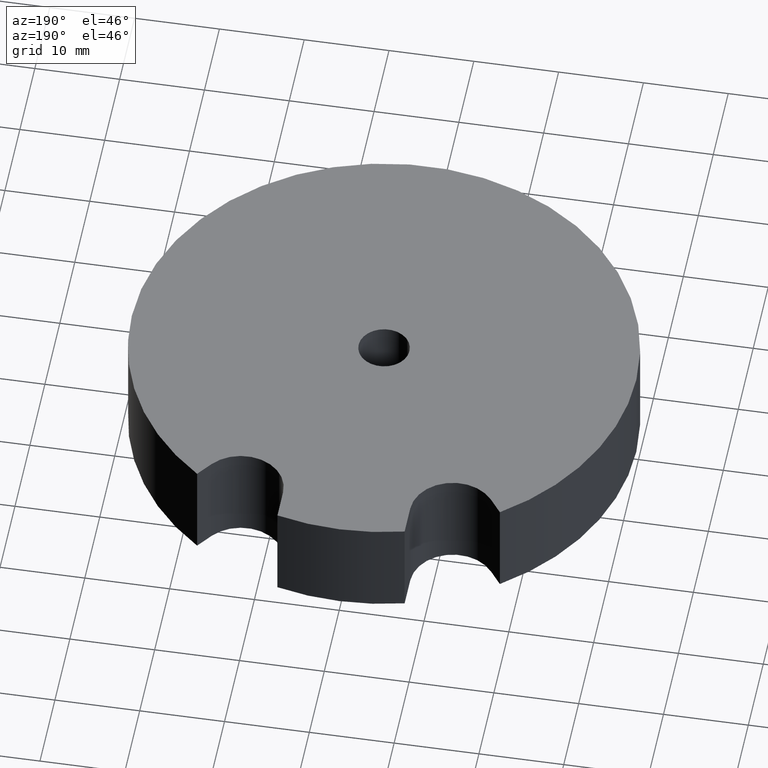
[diagram: clean part render]
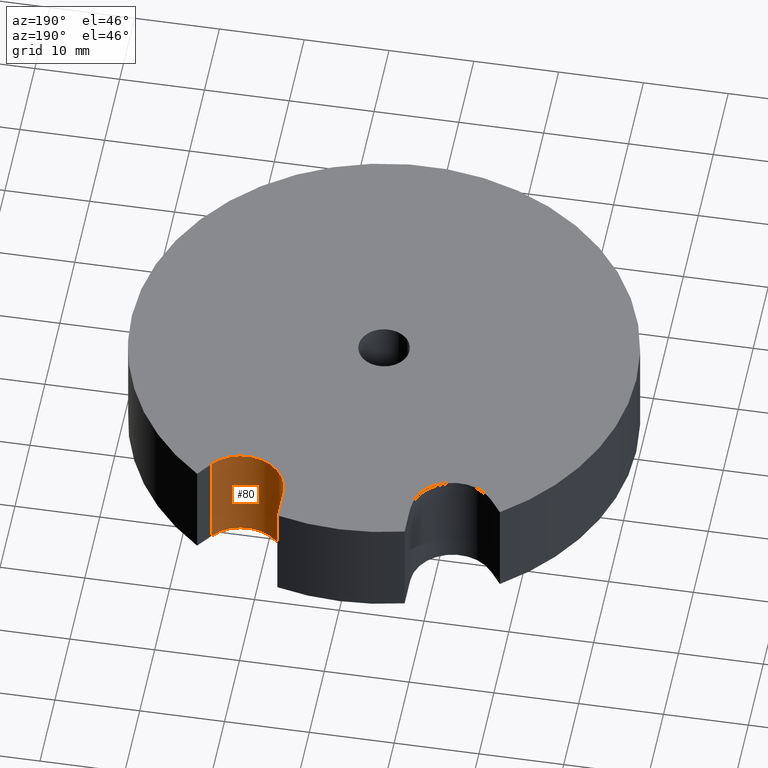
[diagram: same view with one face highlighted and labeled with its STEP entity id]
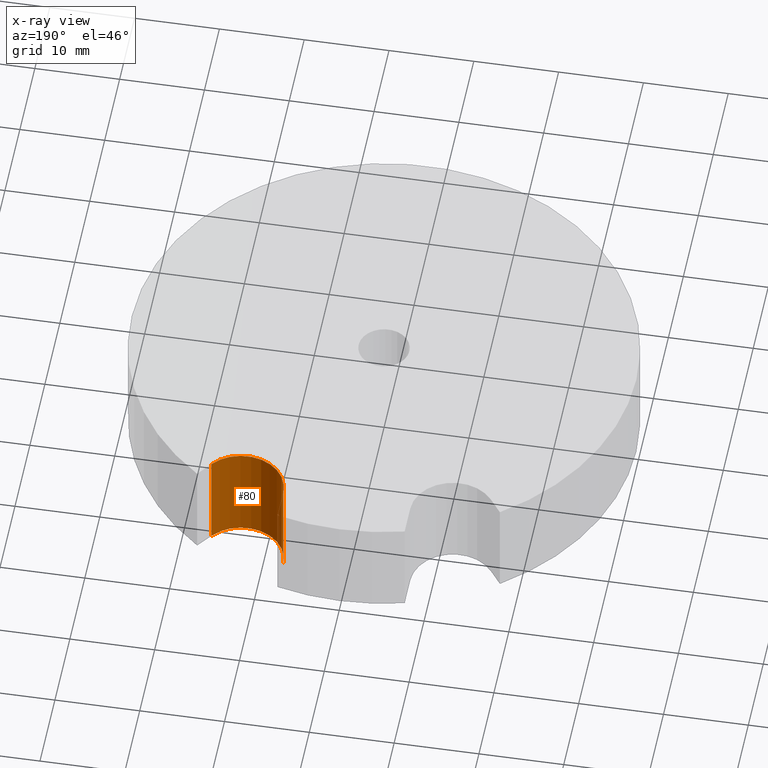
[diagram: x-ray of the same camera — body ghosted, the highlighted face saturated]
A machine part, auxiliary view. The second image highlights one B-rep face of the part: STEP entity #80.
The next image is the same camera in x-ray: the body ghosted, the highlighted face saturated — about 1% of this face is hidden behind the body in this view.
In plain terms, the highlighted cylindrical surface (partial cylindrical patch) has radius 5 mm, axis along (-0, -0, -1).
Its self-contained STEP definition (entity closure, byte-faithful):
#1 = EDGE_CURVE ( 'NONE', #295, #324, #377, .T. ) ;
#21 = CARTESIAN_POINT ( 'NONE',  ( 16.50000000000000000, 22.00000000000000700, 6.000000000000000000 ) ) ;
#22 = CARTESIAN_POINT ( 'NONE',  ( 12.50000000000000000, 25.00000000000000000, -6.000000000000000000 ) ) ;
#24 = CARTESIAN_POINT ( 'NONE',  ( 16.50000000000000000, 22.00000000000000700, -6.000000000000000000 ) ) ;
#40 = CARTESIAN_POINT ( 'NONE',  ( 16.50000000000000000, 22.00000000000000700, 6.000000000000000000 ) ) ;
#59 = DIRECTION ( 'NONE',  ( -0.0000000000000000000, -0.0000000000000000000, -1.000000000000000000 ) ) ;
#75 = EDGE_CURVE ( 'NONE', #293, #295, #224, .T. ) ;
#79 = DIRECTION ( 'NONE',  ( -1.000000000000000000, 0.0000000000000000000, 0.0000000000000000000 ) ) ;
#80 = ADVANCED_FACE ( 'NONE', ( #222 ), #220, .F. ) ;
#86 = CARTESIAN_POINT ( 'NONE',  ( 12.50000000000000000, 25.00000000000000000, 6.000000000000000000 ) ) ;
#121 = CIRCLE ( 'NONE', #213, 4.999999999999997300 ) ;
#126 = LINE ( 'NONE', #248, #158 ) ;
#143 = CARTESIAN_POINT ( 'NONE',  ( 12.50000000000000000, 25.00000000000000000, 6.000000000000000000 ) ) ;
#148 = ORIENTED_EDGE ( 'NONE', *, *, #464, .F. ) ;
#158 = VECTOR ( 'NONE', #59, 1000.000000000000000 ) ;
#161 = DIRECTION ( 'NONE',  ( -0.0000000000000000000, -0.0000000000000000000, -1.000000000000000000 ) ) ;
#199 = CARTESIAN_POINT ( 'NONE',  ( 7.500000000000000000, 25.00000000000000000, 6.000000000000000000 ) ) ;
#213 = AXIS2_PLACEMENT_3D ( 'NONE', #143, #236, #472 ) ;
#220 = CYLINDRICAL_SURFACE ( 'NONE', #334, 4.999999999999997300 ) ;
#222 = FACE_OUTER_BOUND ( 'NONE', #273, .T. ) ;
#224 = LINE ( 'NONE', #40, #228 ) ;
#228 = VECTOR ( 'NONE', #161, 1000.000000000000000 ) ;
#236 = DIRECTION ( 'NONE',  ( -0.0000000000000000000, -0.0000000000000000000, -1.000000000000000000 ) ) ;
#248 = CARTESIAN_POINT ( 'NONE',  ( 7.500000000000000000, 25.00000000000000000, 6.000000000000000000 ) ) ;
#273 = EDGE_LOOP ( 'NONE', ( #458, #367, #148, #434 ) ) ;
#293 = VERTEX_POINT ( 'NONE', #21 ) ;
#294 = CARTESIAN_POINT ( 'NONE',  ( 7.500000000000000000, 25.00000000000000000, -6.000000000000000000 ) ) ;
#295 = VERTEX_POINT ( 'NONE', #24 ) ;
#303 = DIRECTION ( 'NONE',  ( -0.0000000000000000000, -0.0000000000000000000, -1.000000000000000000 ) ) ;
#324 = VERTEX_POINT ( 'NONE', #294 ) ;
#334 = AXIS2_PLACEMENT_3D ( 'NONE', #86, #415, #79 ) ;
#347 = VERTEX_POINT ( 'NONE', #199 ) ;
#367 = ORIENTED_EDGE ( 'NONE', *, *, #399, .F. ) ;
#377 = CIRCLE ( 'NONE', #394, 4.999999999999997300 ) ;
#394 = AXIS2_PLACEMENT_3D ( 'NONE', #22, #303, #484 ) ;
#399 = EDGE_CURVE ( 'NONE', #347, #324, #126, .T. ) ;
#415 = DIRECTION ( 'NONE',  ( -0.0000000000000000000, -0.0000000000000000000, -1.000000000000000000 ) ) ;
#434 = ORIENTED_EDGE ( 'NONE', *, *, #75, .T. ) ;
#458 = ORIENTED_EDGE ( 'NONE', *, *, #1, .T. ) ;
#464 = EDGE_CURVE ( 'NONE', #293, #347, #121, .T. ) ;
#472 = DIRECTION ( 'NONE',  ( -1.000000000000000000, 0.0000000000000000000, 0.0000000000000000000 ) ) ;
#484 = DIRECTION ( 'NONE',  ( -1.000000000000000000, 0.0000000000000000000, 0.0000000000000000000 ) ) ;